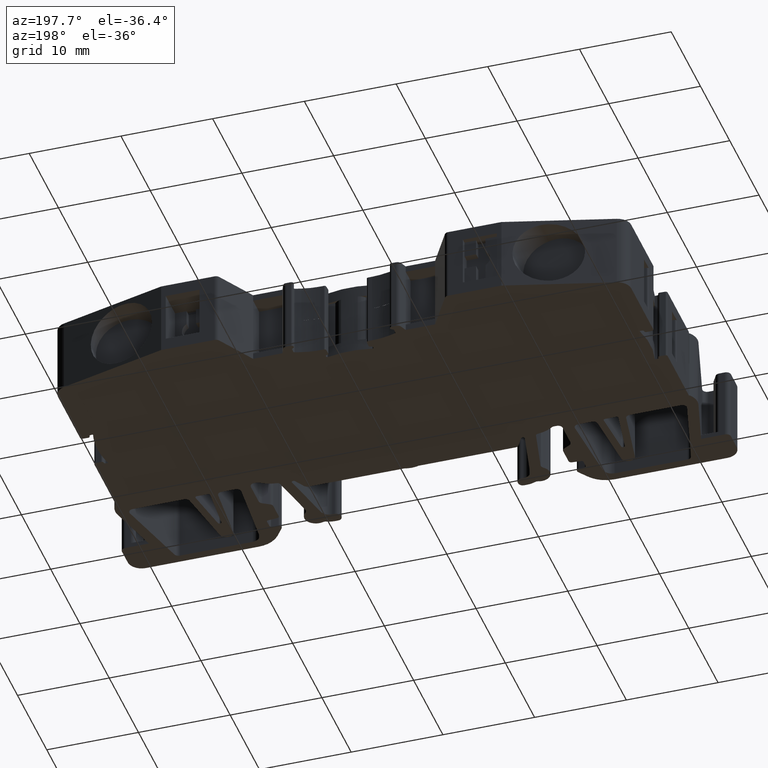
[diagram: clean part render]
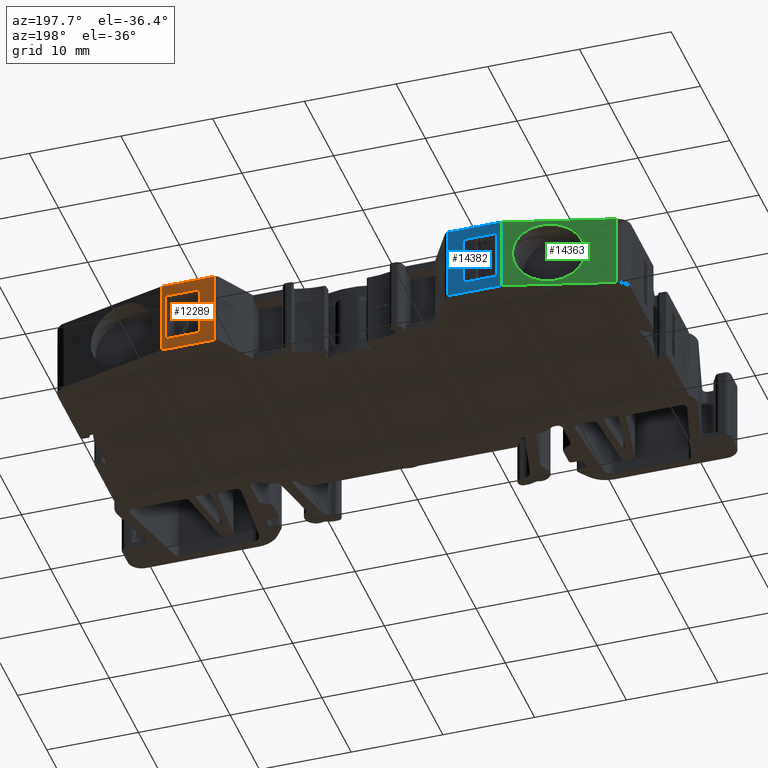
[diagram: same view with three faces highlighted in distinct colors, each labeled with its STEP entity id]
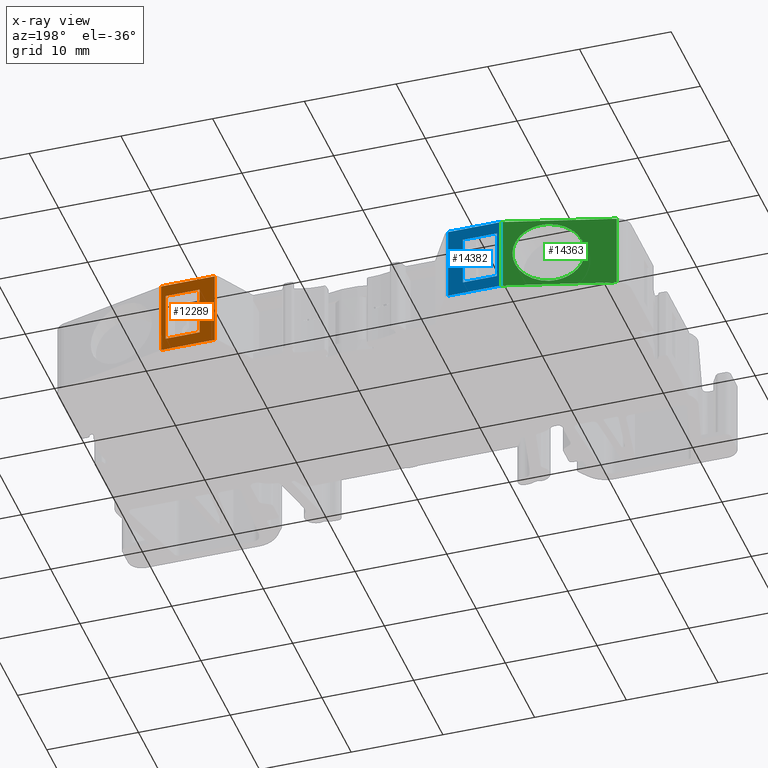
[diagram: x-ray of the same camera — body ghosted, the three highlighted faces saturated]
A machine part, auxiliary view with three faces highlighted in distinct colors.
The next image is the same camera in x-ray (body ghosted, the three faces saturated) — at least one of them is partly hidden behind the body in this view.
Their STEP definitions:

[orange] entity #12289 — the highlighted planar face has unit normal (-0, 1, 0).
#1655 = CARTESIAN_POINT ( 'NONE',  ( 209.0733057929664900, 31.58042765594745700, -20.69999999999999900 ) ) ;
#1661 = LINE ( 'NONE', #1655, #7459 ) ;
#1669 = DIRECTION ( 'NONE',  ( 1.000000000000000000, -0.0000000000000000000, 0.0000000000000000000 ) ) ;
#2748 = EDGE_CURVE ( 'NONE', #13657, #13691, #7957, .T. ) ;
#2753 = EDGE_CURVE ( 'NONE', #13691, #13626, #7982, .T. ) ;
#2765 = EDGE_CURVE ( 'NONE', #13626, #13742, #8035, .T. ) ;
#2795 = EDGE_CURVE ( 'NONE', #13742, #13657, #8172, .T. ) ;
#2797 = EDGE_CURVE ( 'NONE', #13700, #13721, #8178, .T. ) ;
#2913 = EDGE_CURVE ( 'NONE', #13741, #13765, #8619, .T. ) ;
#2927 = EDGE_CURVE ( 'NONE', #13721, #13765, #8650, .T. ) ;
#2967 = EDGE_CURVE ( 'NONE', #13700, #13741, #1661, .T. ) ;
#4526 = CARTESIAN_POINT ( 'NONE',  ( 197.3750710726629900, 31.58042839344956600, -13.84999999999999800 ) ) ;
#4584 = CARTESIAN_POINT ( 'NONE',  ( 193.6750046969305000, 31.58042818979249600, -19.34999999999999800 ) ) ;
#4597 = CARTESIAN_POINT ( 'NONE',  ( 197.8732707734997400, 31.58042776979126000, -20.69999999999999600 ) ) ;
#4609 = CARTESIAN_POINT ( 'NONE',  ( 193.6750046969305000, 31.58042814906108500, -13.84999999999999800 ) ) ;
#4613 = CARTESIAN_POINT ( 'NONE',  ( 197.3750710726629900, 31.58042843418098400, -19.34999999999999400 ) ) ;
#4624 = CARTESIAN_POINT ( 'NONE',  ( 192.0560947566780800, 31.58042765594747100, -12.49999999999998400 ) ) ;
#4639 = CARTESIAN_POINT ( 'NONE',  ( 192.0560947566780800, 31.58042765594746400, -20.69999999999999200 ) ) ;
#4660 = CARTESIAN_POINT ( 'NONE',  ( 197.8732690740151300, 31.58042822516646800, -12.49999999999996300 ) ) ;
#7057 = AXIS2_PLACEMENT_3D ( 'NONE', #17367, #17397, #17383 ) ;
#7289 = VECTOR ( 'NONE', #7939, 1000.000000000000000 ) ;
#7298 = VECTOR ( 'NONE', #7958, 1000.000000000000000 ) ;
#7305 = VECTOR ( 'NONE', #7993, 1000.000000000000000 ) ;
#7363 = VECTOR ( 'NONE', #8174, 1000.000000000000000 ) ;
#7364 = VECTOR ( 'NONE', #8186, 1000.000000000000000 ) ;
#7399 = VECTOR ( 'NONE', #8641, 1000.000000000000000 ) ;
#7433 = VECTOR ( 'NONE', #8655, 1000.000000000000000 ) ;
#7459 = VECTOR ( 'NONE', #1669, 1000.000000000000000 ) ;
#7939 = DIRECTION ( 'NONE',  ( 0.0000000000000000000, 0.0000000000000000000, 1.000000000000000000 ) ) ;
#7941 = CARTESIAN_POINT ( 'NONE',  ( 197.8732673745304900, 31.58042868054169400, -19.34999999999999100 ) ) ;
#7957 = LINE ( 'NONE', #7941, #7298 ) ;
#7958 = DIRECTION ( 'NONE',  ( 0.9999999999999845700, 1.761326856106799200E-007, -0.0000000000000000000 ) ) ;
#7982 = LINE ( 'NONE', #7985, #7289 ) ;
#7985 = CARTESIAN_POINT ( 'NONE',  ( 197.3750710726629600, 31.58042859279303700, -40.77936390590749500 ) ) ;
#7986 = CARTESIAN_POINT ( 'NONE',  ( 197.8732673745304900, 31.58042868054169400, -13.84999999999998700 ) ) ;
#7993 = DIRECTION ( 'NONE',  ( -0.9999999999999845700, -1.761326856106799200E-007, 0.0000000000000000000 ) ) ;
#8035 = LINE ( 'NONE', #7986, #7305 ) ;
#8159 = CARTESIAN_POINT ( 'NONE',  ( 192.0560947566780800, 31.58042765594745700, -40.77936390590749500 ) ) ;
#8162 = CARTESIAN_POINT ( 'NONE',  ( 193.6750046969305600, 31.58042794109041700, -40.77936390590749500 ) ) ;
#8172 = LINE ( 'NONE', #8162, #7364 ) ;
#8174 = DIRECTION ( 'NONE',  ( 0.0000000000000000000, 0.0000000000000000000, 1.000000000000000000 ) ) ;
#8178 = LINE ( 'NONE', #8159, #7363 ) ;
#8186 = DIRECTION ( 'NONE',  ( -0.0000000000000000000, -0.0000000000000000000, -1.000000000000000000 ) ) ;
#8619 = LINE ( 'NONE', #8627, #7399 ) ;
#8627 = CARTESIAN_POINT ( 'NONE',  ( 197.8732699237574500, 31.58042799747886400, -40.77936390590749500 ) ) ;
#8641 = DIRECTION ( 'NONE',  ( 0.0000000000000000000, 0.0000000000000000000, 1.000000000000000000 ) ) ;
#8650 = LINE ( 'NONE', #8652, #7433 ) ;
#8652 = CARTESIAN_POINT ( 'NONE',  ( 197.8732673745304900, 31.58042868054169400, -12.49999999999997700 ) ) ;
#8655 = DIRECTION ( 'NONE',  ( 0.9999999999999845700, 1.761326856106799200E-007, -0.0000000000000000000 ) ) ;
#12289 = ADVANCED_FACE ( 'NONE', ( #17384, #17389 ), #17407, .T. ) ;
#12890 = ORIENTED_EDGE ( 'NONE', *, *, #2927, .T. ) ;
#12980 = ORIENTED_EDGE ( 'NONE', *, *, #2795, .T. ) ;
#13626 = VERTEX_POINT ( 'NONE', #4526 ) ;
#13657 = VERTEX_POINT ( 'NONE', #4584 ) ;
#13691 = VERTEX_POINT ( 'NONE', #4613 ) ;
#13700 = VERTEX_POINT ( 'NONE', #4639 ) ;
#13721 = VERTEX_POINT ( 'NONE', #4624 ) ;
#13741 = VERTEX_POINT ( 'NONE', #4597 ) ;
#13742 = VERTEX_POINT ( 'NONE', #4609 ) ;
#13765 = VERTEX_POINT ( 'NONE', #4660 ) ;
#14299 = ORIENTED_EDGE ( 'NONE', *, *, #2748, .T. ) ;
#14308 = ORIENTED_EDGE ( 'NONE', *, *, #2967, .F. ) ;
#14318 = ORIENTED_EDGE ( 'NONE', *, *, #2753, .T. ) ;
#14325 = ORIENTED_EDGE ( 'NONE', *, *, #2913, .F. ) ;
#14337 = ORIENTED_EDGE ( 'NONE', *, *, #2765, .T. ) ;
#14340 = ORIENTED_EDGE ( 'NONE', *, *, #2797, .T. ) ;
#17026 = EDGE_LOOP ( 'NONE', ( #14340, #12890, #14325, #14308 ) ) ;
#17045 = EDGE_LOOP ( 'NONE', ( #14318, #14337, #12980, #14299 ) ) ;
#17367 = CARTESIAN_POINT ( 'NONE',  ( 197.8732673745304900, 31.58042868054169400, -40.77936390590749500 ) ) ;
#17383 = DIRECTION ( 'NONE',  ( -0.9999999999999845700, -1.761326856106799200E-007, 0.0000000000000000000 ) ) ;
#17384 = FACE_OUTER_BOUND ( 'NONE', #17026, .T. ) ;
#17389 = FACE_BOUND ( 'NONE', #17045, .T. ) ;
#17397 = DIRECTION ( 'NONE',  ( -1.761326856106799200E-007, 0.9999999999999845700, 0.0000000000000000000 ) ) ;
#17407 = PLANE ( 'NONE',  #7057 ) ;

[blue] entity #14382 — the highlighted planar face has unit normal (0, 1, -0).
#1768 = CARTESIAN_POINT ( 'NONE',  ( 209.0733057929664900, 31.58042868054170100, -20.69999999999999900 ) ) ;
#1789 = LINE ( 'NONE', #1791, #7496 ) ;
#1791 = CARTESIAN_POINT ( 'NONE',  ( 160.7732837878730000, 31.58042868054169400, -40.77936390590749500 ) ) ;
#1801 = DIRECTION ( 'NONE',  ( 0.0000000000000000000, 0.0000000000000000000, 1.000000000000000000 ) ) ;
#1804 = LINE ( 'NONE', #1768, #7455 ) ;
#1806 = DIRECTION ( 'NONE',  ( 1.000000000000000000, -0.0000000000000000000, 0.0000000000000000000 ) ) ;
#2631 = LINE ( 'NONE', #2642, #7437 ) ;
#2642 = CARTESIAN_POINT ( 'NONE',  ( 166.5904564057255800, 31.58042765594745700, -40.77936390590749500 ) ) ;
#2664 = DIRECTION ( 'NONE',  ( -0.0000000000000000000, -0.0000000000000000000, -1.000000000000000000 ) ) ;
#2861 = EDGE_CURVE ( 'NONE', #13764, #13702, #8404, .T. ) ;
#2886 = EDGE_CURVE ( 'NONE', #13719, #13716, #8507, .T. ) ;
#2887 = EDGE_CURVE ( 'NONE', #13702, #13719, #8527, .T. ) ;
#2912 = EDGE_CURVE ( 'NONE', #13716, #13764, #8625, .T. ) ;
#2925 = EDGE_CURVE ( 'NONE', #13805, #13686, #8649, .T. ) ;
#2942 = EDGE_CURVE ( 'NONE', #13686, #13752, #2631, .T. ) ;
#3000 = EDGE_CURVE ( 'NONE', #13783, #13805, #1789, .T. ) ;
#3001 = EDGE_CURVE ( 'NONE', #13783, #13752, #1804, .T. ) ;
#3693 = DIRECTION ( 'NONE',  ( 1.761326856106799200E-007, 0.9999999999999845700, -0.0000000000000000000 ) ) ;
#3697 = FACE_BOUND ( 'NONE', #16523, .T. ) ;
#3701 = DIRECTION ( 'NONE',  ( -0.9999999999999845700, 1.761326856106799200E-007, 0.0000000000000000000 ) ) ;
#3714 = FACE_OUTER_BOUND ( 'NONE', #16550, .T. ) ;
#3717 = PLANE ( 'NONE',  #10531 ) ;
#3718 = CARTESIAN_POINT ( 'NONE',  ( 160.7732837878729700, 31.58042868054169400, -40.77936390590749500 ) ) ;
#4569 = CARTESIAN_POINT ( 'NONE',  ( 166.5904564057255800, 31.58042765594747100, -12.49999999999997500 ) ) ;
#4614 = CARTESIAN_POINT ( 'NONE',  ( 161.2714800897405200, 31.58042843418098400, -13.84999999999999400 ) ) ;
#4618 = CARTESIAN_POINT ( 'NONE',  ( 166.5904564057255800, 31.58042765594746400, -20.69999999999999600 ) ) ;
#4626 = CARTESIAN_POINT ( 'NONE',  ( 164.9715464654729800, 31.58042818979249600, -13.85000000000000000 ) ) ;
#4636 = CARTESIAN_POINT ( 'NONE',  ( 161.2714800897405200, 31.58042835271815500, -19.34999999999999400 ) ) ;
#4645 = CARTESIAN_POINT ( 'NONE',  ( 164.9715464654729800, 31.58042804507574900, -19.34999999999999100 ) ) ;
#4665 = CARTESIAN_POINT ( 'NONE',  ( 160.7732837878730300, 31.58042868054170100, -20.69999999999999600 ) ) ;
#4668 = CARTESIAN_POINT ( 'NONE',  ( 160.7732831505662700, 31.58042868054181100, -12.49999999999996300 ) ) ;
#7370 = VECTOR ( 'NONE', #8407, 1000.000000000000000 ) ;
#7400 = VECTOR ( 'NONE', #8654, 1000.000000000000000 ) ;
#7401 = VECTOR ( 'NONE', #8517, 1000.000000000000000 ) ;
#7406 = VECTOR ( 'NONE', #8528, 1000.000000000000000 ) ;
#7437 = VECTOR ( 'NONE', #2664, 1000.000000000000000 ) ;
#7445 = VECTOR ( 'NONE', #8636, 1000.000000000000000 ) ;
#7455 = VECTOR ( 'NONE', #1806, 1000.000000000000000 ) ;
#7496 = VECTOR ( 'NONE', #1801, 1000.000000000000000 ) ;
#8404 = LINE ( 'NONE', #8405, #7370 ) ;
#8405 = CARTESIAN_POINT ( 'NONE',  ( 161.2714800897405500, 31.58042859279303700, -40.77936390590749500 ) ) ;
#8407 = DIRECTION ( 'NONE',  ( -0.0000000000000000000, -0.0000000000000000000, -1.000000000000000000 ) ) ;
#8498 = CARTESIAN_POINT ( 'NONE',  ( 164.9715464654729300, 31.58042794109041700, -40.77936390590749500 ) ) ;
#8502 = CARTESIAN_POINT ( 'NONE',  ( 160.7732837878729700, 31.58042868054169400, -19.34999999999999100 ) ) ;
#8507 = LINE ( 'NONE', #8498, #7401 ) ;
#8517 = DIRECTION ( 'NONE',  ( 0.0000000000000000000, 0.0000000000000000000, 1.000000000000000000 ) ) ;
#8527 = LINE ( 'NONE', #8502, #7406 ) ;
#8528 = DIRECTION ( 'NONE',  ( 0.9999999999999845700, -1.761326856106799200E-007, -0.0000000000000000000 ) ) ;
#8598 = CARTESIAN_POINT ( 'NONE',  ( 160.7732837878729700, 31.58042868054169400, -13.84999999999998000 ) ) ;
#8625 = LINE ( 'NONE', #8598, #7445 ) ;
#8636 = DIRECTION ( 'NONE',  ( -0.9999999999999845700, 1.761326856106799200E-007, 0.0000000000000000000 ) ) ;
#8649 = LINE ( 'NONE', #8671, #7400 ) ;
#8654 = DIRECTION ( 'NONE',  ( 0.9999999999999845700, -1.761326856106799200E-007, -0.0000000000000000000 ) ) ;
#8671 = CARTESIAN_POINT ( 'NONE',  ( 160.7732837878729700, 31.58042868054169400, -12.49999999999996300 ) ) ;
#10531 = AXIS2_PLACEMENT_3D ( 'NONE', #3718, #3693, #3701 ) ;
#12997 = ORIENTED_EDGE ( 'NONE', *, *, #2861, .T. ) ;
#13046 = ORIENTED_EDGE ( 'NONE', *, *, #3001, .F. ) ;
#13050 = ORIENTED_EDGE ( 'NONE', *, *, #2886, .T. ) ;
#13052 = ORIENTED_EDGE ( 'NONE', *, *, #3000, .T. ) ;
#13064 = ORIENTED_EDGE ( 'NONE', *, *, #2912, .T. ) ;
#13079 = ORIENTED_EDGE ( 'NONE', *, *, #2942, .T. ) ;
#13138 = ORIENTED_EDGE ( 'NONE', *, *, #2887, .T. ) ;
#13146 = ORIENTED_EDGE ( 'NONE', *, *, #2925, .T. ) ;
#13686 = VERTEX_POINT ( 'NONE', #4569 ) ;
#13702 = VERTEX_POINT ( 'NONE', #4636 ) ;
#13716 = VERTEX_POINT ( 'NONE', #4626 ) ;
#13719 = VERTEX_POINT ( 'NONE', #4645 ) ;
#13752 = VERTEX_POINT ( 'NONE', #4618 ) ;
#13764 = VERTEX_POINT ( 'NONE', #4614 ) ;
#13783 = VERTEX_POINT ( 'NONE', #4665 ) ;
#13805 = VERTEX_POINT ( 'NONE', #4668 ) ;
#14382 = ADVANCED_FACE ( 'NONE', ( #3714, #3697 ), #3717, .T. ) ;
#16523 = EDGE_LOOP ( 'NONE', ( #13064, #12997, #13138, #13050 ) ) ;
#16550 = EDGE_LOOP ( 'NONE', ( #13052, #13146, #13079, #13046 ) ) ;

[green] entity #14363 — the highlighted planar face has unit normal (-0.2588, 0.9659, 0).
#1583 = CARTESIAN_POINT ( 'NONE',  ( 163.3232736652845200, 32.26369592751903800, -20.25000000000000000 ) ) ;
#1586 = CARTESIAN_POINT ( 'NONE',  ( 163.3232736652845200, 32.26369592751903800, -12.95000000000000100 ) ) ;
#1587 = CARTESIAN_POINT ( 'NONE',  ( 149.1850165070684400, 28.47536400858687600, -40.77936390590749500 ) ) ;
#1605 = CARTESIAN_POINT ( 'NONE',  ( 156.0232736652845100, 30.30766820085303000, -20.25000000000000000 ) ) ;
#1613 = DIRECTION ( 'NONE',  ( 0.0000000000000000000, 0.0000000000000000000, 1.000000000000000000 ) ) ;
#1616 = LINE ( 'NONE', #1587, #7448 ) ;
#1629 = CARTESIAN_POINT ( 'NONE',  ( 156.0232736652845100, 30.30766820085303000, -12.94999999999999900 ) ) ;
#1740 = LINE ( 'NONE', #1741, #7511 ) ;
#1741 = CARTESIAN_POINT ( 'NONE',  ( 149.1850165070684400, 28.47536400858691900, -20.69999999999999900 ) ) ;
#1789 = LINE ( 'NONE', #1791, #7496 ) ;
#1791 = CARTESIAN_POINT ( 'NONE',  ( 160.7732837878730000, 31.58042868054169400, -40.77936390590749500 ) ) ;
#1797 = DIRECTION ( 'NONE',  ( 0.9659258718755019400, 0.2588188749715743500, 0.0000000000000000000 ) ) ;
#1801 = DIRECTION ( 'NONE',  ( 0.0000000000000000000, 0.0000000000000000000, 1.000000000000000000 ) ) ;
#2636 = LINE ( 'NONE', #2657, #7436 ) ;
#2657 = CARTESIAN_POINT ( 'NONE',  ( 160.7732837878729700, 31.58042868054169400, -12.49999999999997700 ) ) ;
#2658 = DIRECTION ( 'NONE',  ( 0.9659258718755010500, 0.2588188749715775700, -0.0000000000000000000 ) ) ;
#2934 = EDGE_CURVE ( 'NONE', #13734, #13805, #2636, .T. ) ;
#2948 = EDGE_CURVE ( 'NONE', #10147, #10144, #7715, .T. ) ;
#2949 = EDGE_CURVE ( 'NONE', #13718, #13734, #1616, .T. ) ;
#2993 = EDGE_CURVE ( 'NONE', #13718, #13783, #1740, .T. ) ;
#3000 = EDGE_CURVE ( 'NONE', #13783, #13805, #1789, .T. ) ;
#4591 = CARTESIAN_POINT ( 'NONE',  ( 149.1850165070684400, 28.47536400858687600, -12.49999999999998400 ) ) ;
#4630 = CARTESIAN_POINT ( 'NONE',  ( 149.1850165070684400, 28.47536400858689700, -20.69999999999999900 ) ) ;
#4665 = CARTESIAN_POINT ( 'NONE',  ( 160.7732837878730300, 31.58042868054170100, -20.69999999999999600 ) ) ;
#4668 = CARTESIAN_POINT ( 'NONE',  ( 160.7732831505662700, 31.58042868054181100, -12.49999999999996300 ) ) ;
#4779 = FACE_OUTER_BOUND ( 'NONE', #16562, .T. ) ;
#4789 = DIRECTION ( 'NONE',  ( -0.2588188749715776300, 0.9659258718755011600, 0.0000000000000000000 ) ) ;
#4790 = CARTESIAN_POINT ( 'NONE',  ( 160.7732837878729700, 31.58042868054169400, -40.77936390590749500 ) ) ;
#4811 = FACE_BOUND ( 'NONE', #16545, .T. ) ;
#4813 = PLANE ( 'NONE',  #10543 ) ;
#4814 = DIRECTION ( 'NONE',  ( -0.9659258718755010500, -0.2588188749715775700, 0.0000000000000000000 ) ) ;
#7436 = VECTOR ( 'NONE', #2658, 1000.000000000000100 ) ;
#7448 = VECTOR ( 'NONE', #1613, 1000.000000000000000 ) ;
#7496 = VECTOR ( 'NONE', #1801, 1000.000000000000000 ) ;
#7511 = VECTOR ( 'NONE', #1797, 1000.000000000000000 ) ;
#7715 =( BOUNDED_CURVE ( )  B_SPLINE_CURVE ( 3, ( #1605, #1583, #1586, #1629 ),
 .UNSPECIFIED., .F., .T. ) 
 B_SPLINE_CURVE_WITH_KNOTS ( ( 4, 4 ),
 ( 1.570796326794896600, 4.712388980384689700 ),
 .UNSPECIFIED. ) 
 CURVE ( )  GEOMETRIC_REPRESENTATION_ITEM ( )  RATIONAL_B_SPLINE_CURVE ( ( 1.000000000000000000, 0.3333333333333333700, 0.3333333333333333700, 1.000000000000000000 ) ) 
 REPRESENTATION_ITEM ( '' )  );
#7717 =( BOUNDED_CURVE ( )  B_SPLINE_CURVE ( 3, ( #9003, #9023, #9049, #9059 ),
 .UNSPECIFIED., .F., .T. ) 
 B_SPLINE_CURVE_WITH_KNOTS ( ( 4, 4 ),
 ( 4.712388980384689700, 7.853981633974482800 ),
 .UNSPECIFIED. ) 
 CURVE ( )  GEOMETRIC_REPRESENTATION_ITEM ( )  RATIONAL_B_SPLINE_CURVE ( ( 1.000000000000000000, 0.3333333333333333700, 0.3333333333333333700, 1.000000000000000000 ) ) 
 REPRESENTATION_ITEM ( '' )  );
#9003 = CARTESIAN_POINT ( 'NONE',  ( 156.0232736652845100, 30.30766820085303000, -12.94999999999999900 ) ) ;
#9023 = CARTESIAN_POINT ( 'NONE',  ( 148.7232736652845200, 28.35164047418703200, -12.94999999999999800 ) ) ;
#9049 = CARTESIAN_POINT ( 'NONE',  ( 148.7232736652845200, 28.35164047418703200, -20.25000000000000000 ) ) ;
#9059 = CARTESIAN_POINT ( 'NONE',  ( 156.0232736652845100, 30.30766820085303000, -20.25000000000000000 ) ) ;
#9417 = CARTESIAN_POINT ( 'NONE',  ( 156.0232736652845100, 30.30766820085303000, -12.94999999999999900 ) ) ;
#9423 = CARTESIAN_POINT ( 'NONE',  ( 156.0232736652845100, 30.30766820085303000, -20.25000000000000000 ) ) ;
#10144 = VERTEX_POINT ( 'NONE', #9417 ) ;
#10147 = VERTEX_POINT ( 'NONE', #9423 ) ;
#10543 = AXIS2_PLACEMENT_3D ( 'NONE', #4790, #4789, #4814 ) ;
#12544 = EDGE_CURVE ( 'NONE', #10144, #10147, #7717, .T. ) ;
#13016 = ORIENTED_EDGE ( 'NONE', *, *, #12544, .T. ) ;
#13040 = ORIENTED_EDGE ( 'NONE', *, *, #2934, .T. ) ;
#13071 = ORIENTED_EDGE ( 'NONE', *, *, #3000, .F. ) ;
#13083 = ORIENTED_EDGE ( 'NONE', *, *, #2949, .T. ) ;
#13098 = ORIENTED_EDGE ( 'NONE', *, *, #2993, .F. ) ;
#13136 = ORIENTED_EDGE ( 'NONE', *, *, #2948, .T. ) ;
#13718 = VERTEX_POINT ( 'NONE', #4630 ) ;
#13734 = VERTEX_POINT ( 'NONE', #4591 ) ;
#13783 = VERTEX_POINT ( 'NONE', #4665 ) ;
#13805 = VERTEX_POINT ( 'NONE', #4668 ) ;
#14363 = ADVANCED_FACE ( 'NONE', ( #4779, #4811 ), #4813, .T. ) ;
#16545 = EDGE_LOOP ( 'NONE', ( #13136, #13016 ) ) ;
#16562 = EDGE_LOOP ( 'NONE', ( #13083, #13040, #13071, #13098 ) ) ;